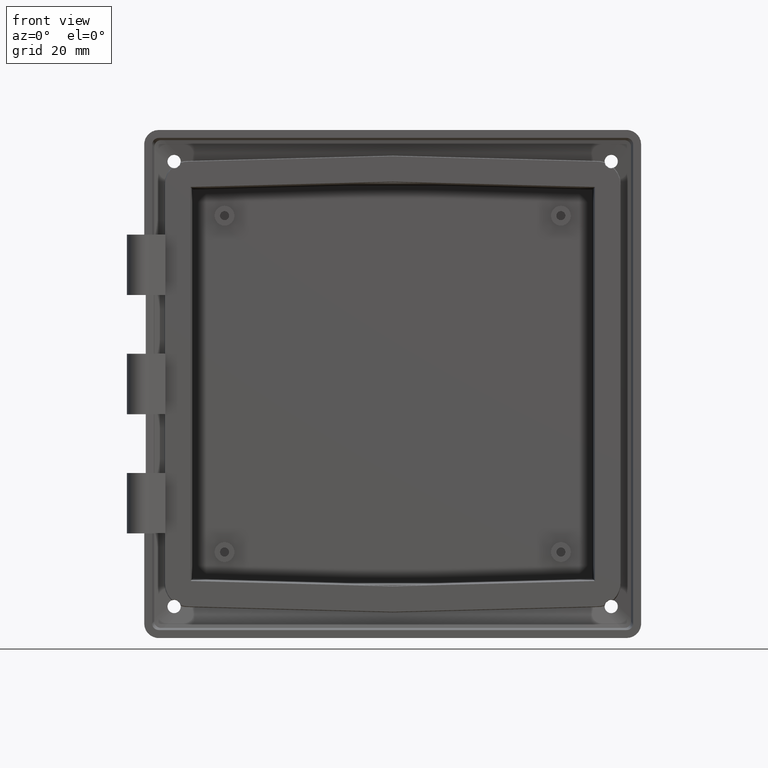
[diagram: clean part render]
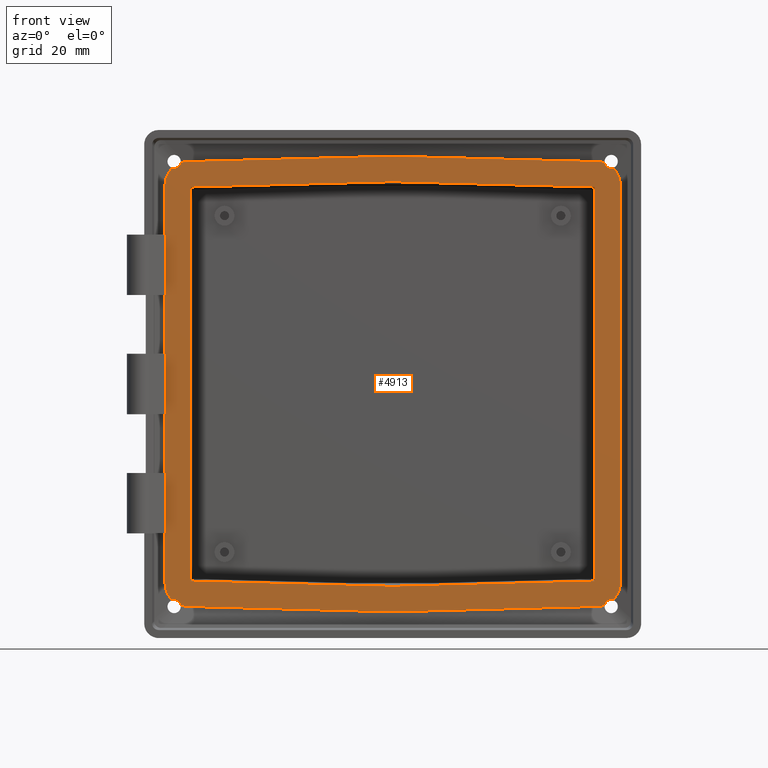
[diagram: same view with one face highlighted and labeled with its STEP entity id]
A machine part, front view. The second image highlights one B-rep face of the part: STEP entity #4913.
In plain terms, the highlighted planar face has unit normal (0, -1, 0).
Its self-contained STEP definition (entity closure, byte-faithful):
#29 = ORIENTED_EDGE ( 'NONE', *, *, #6677, .F. ) ;
#41 = VERTEX_POINT ( 'NONE', #6405 ) ;
#62 = ORIENTED_EDGE ( 'NONE', *, *, #358, .T. ) ;
#81 = EDGE_CURVE ( 'NONE', #2388, #2532, #2846, .T. ) ;
#84 = ORIENTED_EDGE ( 'NONE', *, *, #334, .F. ) ;
#92 = EDGE_CURVE ( 'NONE', #2388, #5850, #6763, .T. ) ;
#99 = CARTESIAN_POINT ( 'NONE',  ( -85.95431986137954500, 3.000000000000000000, -75.19177122956307400 ) ) ;
#124 = DIRECTION ( 'NONE',  ( 0.0000000000000000000, 0.0000000000000000000, -1.000000000000000000 ) ) ;
#134 = CARTESIAN_POINT ( 'NONE',  ( -85.95431986137954500, 2.999999999999999600, -77.60513357907753100 ) ) ;
#136 = EDGE_CURVE ( 'NONE', #5267, #7172, #5724, .T. ) ;
#159 = CARTESIAN_POINT ( 'NONE',  ( 83.28277136946401500, 3.000000000000000000, -81.50589565828342100 ) ) ;
#170 = VERTEX_POINT ( 'NONE', #6622 ) ;
#195 = CARTESIAN_POINT ( 'NONE',  ( -76.69836322453188900, 3.000000000000000000, -84.00150526381885600 ) ) ;
#223 = CARTESIAN_POINT ( 'NONE',  ( -85.95431986137954500, 3.000000000000000000, 77.60513357907756000 ) ) ;
#255 = DIRECTION ( 'NONE',  ( 0.0000000000000000000, -1.000000000000000000, 0.0000000000000000000 ) ) ;
#259 = ORIENTED_EDGE ( 'NONE', *, *, #3844, .F. ) ;
#277 = CARTESIAN_POINT ( 'NONE',  ( 76.34479524442905100, 3.000000000000000400, -74.39794507738520200 ) ) ;
#300 = ORIENTED_EDGE ( 'NONE', *, *, #6448, .T. ) ;
#325 = ORIENTED_EDGE ( 'NONE', *, *, #3719, .F. ) ;
#334 = EDGE_CURVE ( 'NONE', #2850, #6975, #6871, .T. ) ;
#338 = ORIENTED_EDGE ( 'NONE', *, *, #5276, .F. ) ;
#347 = CARTESIAN_POINT ( 'NONE',  ( 0.0000000000000000000, 3.000000000000000000, -76.39710389787147400 ) ) ;
#358 = EDGE_CURVE ( 'NONE', #983, #4411, #3478, .T. ) ;
#375 = ORIENTED_EDGE ( 'NONE', *, *, #4908, .T. ) ;
#397 = DIRECTION ( 'NONE',  ( 0.0000000000000000000, 0.0000000000000000000, 1.000000000000000000 ) ) ;
#405 = LINE ( 'NONE', #5751, #4909 ) ;
#415 = EDGE_CURVE ( 'NONE', #7193, #6068, #1574, .T. ) ;
#419 = DIRECTION ( 'NONE',  ( -1.584959911197263000E-014, 0.0000000000000000000, -1.000000000000000000 ) ) ;
#424 = EDGE_CURVE ( 'NONE', #3436, #5420, #1025, .T. ) ;
#450 = ORIENTED_EDGE ( 'NONE', *, *, #966, .T. ) ;
#467 = CARTESIAN_POINT ( 'NONE',  ( -64.48524748355609400, 3.000000000000000000, 95.85312416215902000 ) ) ;
#489 = VERTEX_POINT ( 'NONE', #1910 ) ;
#499 = CARTESIAN_POINT ( 'NONE',  ( 79.11337956163669100, 2.999999999999999600, 83.81065114022781900 ) ) ;
#506 = CARTESIAN_POINT ( 'NONE',  ( 83.28277136946401500, 3.000000000000000000, -81.50589565828342100 ) ) ;
#529 = ORIENTED_EDGE ( 'NONE', *, *, #6993, .F. ) ;
#546 = CARTESIAN_POINT ( 'NONE',  ( 82.51926223426440300, 3.000000000000000000, -81.39248517010544500 ) ) ;
#548 = DIRECTION ( 'NONE',  ( -0.9996573249755572600, -0.0000000000000000000, 0.02617694830787313900 ) ) ;
#559 = AXIS2_PLACEMENT_3D ( 'NONE', #5155, #2898, #4058 ) ;
#575 = DIRECTION ( 'NONE',  ( 0.9996573249755572600, -0.0000000000000000000, 0.02617694830787313900 ) ) ;
#589 = CARTESIAN_POINT ( 'NONE',  ( 81.67173718818632700, 3.000000000000000000, -81.98906488024424300 ) ) ;
#657 = CARTESIAN_POINT ( 'NONE',  ( -80.30777514394061700, 3.000000000000000000, -82.60177057851379300 ) ) ;
#658 = DIRECTION ( 'NONE',  ( 0.0000000000000000000, -1.000000000000000000, 0.0000000000000000000 ) ) ;
#666 = CARTESIAN_POINT ( 'NONE',  ( -0.002742357533569922600, 3.000000000000000000, 76.39717570903076200 ) ) ;
#680 = ORIENTED_EDGE ( 'NONE', *, *, #1906, .T. ) ;
#682 = DIRECTION ( 'NONE',  ( 0.0000000000000000000, -1.000000000000000000, 0.0000000000000000000 ) ) ;
#710 = AXIS2_PLACEMENT_3D ( 'NONE', #2519, #6527, #7158 ) ;
#784 = CARTESIAN_POINT ( 'NONE',  ( 76.34479524442906500, 3.000000000000000000, -74.49999999999998600 ) ) ;
#803 = ORIENTED_EDGE ( 'NONE', *, *, #3819, .F. ) ;
#842 = ORIENTED_EDGE ( 'NONE', *, *, #5746, .T. ) ;
#861 = VERTEX_POINT ( 'NONE', #4527 ) ;
#862 = CARTESIAN_POINT ( 'NONE',  ( -85.95431986137954500, 3.000000000000000000, 75.19177122956313000 ) ) ;
#864 = CIRCLE ( 'NONE', #7066, 0.4267770641589452300 ) ;
#885 = EDGE_CURVE ( 'NONE', #7364, #2780, #4979, .T. ) ;
#891 = AXIS2_PLACEMENT_3D ( 'NONE', #2038, #4261, #3208 ) ;
#906 = CARTESIAN_POINT ( 'NONE',  ( -82.51926223426440300, 3.000000000000000000, -81.39248517010545900 ) ) ;
#916 = CARTESIAN_POINT ( 'NONE',  ( -85.95431986137954500, 3.000000000000000000, -11.39999999999996700 ) ) ;
#918 = DIRECTION ( 'NONE',  ( -0.0000000000000000000, 1.000000000000000000, -0.0000000000000000000 ) ) ;
#945 = VERTEX_POINT ( 'NONE', #99 ) ;
#946 = CARTESIAN_POINT ( 'NONE',  ( 85.95431986137954500, 3.000000000000000000, 75.19177122956308800 ) ) ;
#957 = CIRCLE ( 'NONE', #1655, 2.626777064158911200 ) ;
#966 = EDGE_CURVE ( 'NONE', #4675, #4575, #5415, .T. ) ;
#983 = VERTEX_POINT ( 'NONE', #4022 ) ;
#1020 = EDGE_CURVE ( 'NONE', #3744, #4198, #4115, .T. ) ;
#1021 = DIRECTION ( 'NONE',  ( 0.0000000000000000000, -1.000000000000000000, 0.0000000000000000000 ) ) ;
#1025 = LINE ( 'NONE', #1818, #3642 ) ;
#1075 = ORIENTED_EDGE ( 'NONE', *, *, #4199, .T. ) ;
#1131 = EDGE_CURVE ( 'NONE', #4438, #7191, #2771, .T. ) ;
#1137 = EDGE_CURVE ( 'NONE', #4943, #7191, #5597, .T. ) ;
#1175 = AXIS2_PLACEMENT_3D ( 'NONE', #6480, #3021, #6624 ) ;
#1201 = DIRECTION ( 'NONE',  ( 0.0000000000000000000, 0.0000000000000000000, -1.000000000000000000 ) ) ;
#1221 = DIRECTION ( 'NONE',  ( 0.9996573249755572600, -0.0000000000000000000, -0.02617694830787332300 ) ) ;
#1233 = VECTOR ( 'NONE', #1960, 1000.000000000000000 ) ;
#1235 = CARTESIAN_POINT ( 'NONE',  ( -85.95431986137954500, 3.000000000000000000, 33.60000000000000100 ) ) ;
#1250 = DIRECTION ( 'NONE',  ( 0.0000000000000000000, 0.0000000000000000000, 1.000000000000000000 ) ) ;
#1262 = AXIS2_PLACEMENT_3D ( 'NONE', #6786, #1021, #5667 ) ;
#1266 = CARTESIAN_POINT ( 'NONE',  ( 78.25809213261251800, 3.000000000000000400, -83.96066232496262700 ) ) ;
#1271 = EDGE_CURVE ( 'NONE', #5892, #5267, #7014, .T. ) ;
#1274 = VECTOR ( 'NONE', #1821, 1000.000000000000000 ) ;
#1288 = VECTOR ( 'NONE', #2978, 1000.000000000000000 ) ;
#1313 = DIRECTION ( 'NONE',  ( -0.0000000000000000000, -0.0000000000000000000, 1.000000000000000000 ) ) ;
#1347 =( BOUNDED_CURVE ( )  B_SPLINE_CURVE ( 3, ( #2382, #2985, #6982, #2018 ),
 .UNSPECIFIED., .F., .F. ) 
 B_SPLINE_CURVE_WITH_KNOTS ( ( 4, 4 ),
 ( 3.618474534263408600, 3.913307588947642700 ),
 .UNSPECIFIED. ) 
 CURVE ( )  GEOMETRIC_REPRESENTATION_ITEM ( )  RATIONAL_B_SPLINE_CURVE ( ( 1.000000000000000000, 0.9927692314299956200, 0.9927692314299956200, 1.000000000000000000 ) ) 
 REPRESENTATION_ITEM ( '' )  );
#1414 = DIRECTION ( 'NONE',  ( -0.0000000000000000000, -0.0000000000000000000, -1.000000000000000000 ) ) ;
#1426 = CARTESIAN_POINT ( 'NONE',  ( -85.95431986137954500, 3.000000000000000000, 74.50000000000000000 ) ) ;
#1437 = ORIENTED_EDGE ( 'NONE', *, *, #5424, .T. ) ;
#1441 = VECTOR ( 'NONE', #1414, 1000.000000000000000 ) ;
#1446 = VERTEX_POINT ( 'NONE', #5793 ) ;
#1459 = DIRECTION ( 'NONE',  ( 0.9996573249755572600, 0.0000000000000000000, -0.02617694830787332300 ) ) ;
#1495 = CARTESIAN_POINT ( 'NONE',  ( -85.95431986137954500, 2.999999999999998200, -33.60000000000000100 ) ) ;
#1510 = ORIENTED_EDGE ( 'NONE', *, *, #6985, .T. ) ;
#1528 = CARTESIAN_POINT ( 'NONE',  ( 167.1202613432990100, 3.000000000000000000, 9.732121886572894500 ) ) ;
#1534 = DIRECTION ( 'NONE',  ( -0.9996573249755572600, 0.0000000000000000000, -0.02617694830787332300 ) ) ;
#1540 = VECTOR ( 'NONE', #575, 1000.000000000000100 ) ;
#1547 = VERTEX_POINT ( 'NONE', #7020 ) ;
#1574 = CIRCLE ( 'NONE', #1981, 0.4267770641589313500 ) ;
#1580 = CARTESIAN_POINT ( 'NONE',  ( 85.95431986137957400, 3.000000000000000400, 77.60513357907754500 ) ) ;
#1604 = CIRCLE ( 'NONE', #7404, 0.4267770641589036000 ) ;
#1646 = ORIENTED_EDGE ( 'NONE', *, *, #4625, .T. ) ;
#1655 = AXIS2_PLACEMENT_3D ( 'NONE', #5984, #3623, #4879 ) ;
#1657 = DIRECTION ( 'NONE',  ( -0.0000000000000000000, 1.000000000000000000, -0.0000000000000000000 ) ) ;
#1669 = ORIENTED_EDGE ( 'NONE', *, *, #7035, .T. ) ;
#1711 = CARTESIAN_POINT ( 'NONE',  ( -77.38989740137203900, 3.000000000000000000, -83.98339680410171600 ) ) ;
#1768 = ORIENTED_EDGE ( 'NONE', *, *, #885, .T. ) ;
#1806 = CIRCLE ( 'NONE', #4119, 2.626777064158925000 ) ;
#1814 = AXIS2_PLACEMENT_3D ( 'NONE', #3227, #7212, #4968 ) ;
#1818 = CARTESIAN_POINT ( 'NONE',  ( -85.95431986137954500, 3.000000000000000000, 74.50000000000000000 ) ) ;
#1821 = DIRECTION ( 'NONE',  ( 0.0000000000000000000, 0.0000000000000000000, 1.000000000000000000 ) ) ;
#1829 = LINE ( 'NONE', #2285, #1540 ) ;
#1872 = CIRCLE ( 'NONE', #4398, 0.4267770641589036000 ) ;
#1883 = CARTESIAN_POINT ( 'NONE',  ( -79.93720653206419500, 3.000000000000000000, 83.53661733837643100 ) ) ;
#1893 = ORIENTED_EDGE ( 'NONE', *, *, #5906, .T. ) ;
#1901 = CARTESIAN_POINT ( 'NONE',  ( -76.69836322453188900, 3.000000000000000000, 84.00150526381885600 ) ) ;
#1906 = EDGE_CURVE ( 'NONE', #3735, #6436, #6048, .T. ) ;
#1910 = CARTESIAN_POINT ( 'NONE',  ( -76.34479524442906500, 3.000000000000000000, -74.39794507738523100 ) ) ;
#1950 = DIRECTION ( 'NONE',  ( -0.9996573249755572600, 0.0000000000000000000, 0.02617694830787313900 ) ) ;
#1952 = LINE ( 'NONE', #3319, #3377 ) ;
#1960 = DIRECTION ( 'NONE',  ( 0.0000000000000000000, 0.0000000000000000000, 1.000000000000000000 ) ) ;
#1981 = AXIS2_PLACEMENT_3D ( 'NONE', #4591, #2358, #1201 ) ;
#1987 = EDGE_CURVE ( 'NONE', #4438, #2780, #4340, .T. ) ;
#2001 = EDGE_CURVE ( 'NONE', #5807, #2253, #7190, .T. ) ;
#2018 = CARTESIAN_POINT ( 'NONE',  ( -77.38989740137203900, 3.000000000000000000, -83.98339680410171600 ) ) ;
#2038 = CARTESIAN_POINT ( 'NONE',  ( -82.51926223426440300, 3.000000000000000000, 84.01926223426437400 ) ) ;
#2071 = AXIS2_PLACEMENT_3D ( 'NONE', #5514, #6708, #3259 ) ;
#2087 = DIRECTION ( 'NONE',  ( -0.0000000000000000000, 1.000000000000000000, -0.0000000000000000000 ) ) ;
#2100 = ORIENTED_EDGE ( 'NONE', *, *, #1137, .F. ) ;
#2103 = CARTESIAN_POINT ( 'NONE',  ( 83.19915411341777700, 3.000000000000000000, -80.15029201115565600 ) ) ;
#2116 = CARTESIAN_POINT ( 'NONE',  ( 85.95431986137954500, 3.000000000000000000, -75.19177122956311600 ) ) ;
#2121 = FACE_BOUND ( 'NONE', #4518, .T. ) ;
#2134 = CARTESIAN_POINT ( 'NONE',  ( 82.51926223426440300, 3.000000000000000000, -84.01926223426437400 ) ) ;
#2150 = CARTESIAN_POINT ( 'NONE',  ( 1.393199791643873200E-014, 3.000000000000000000, -86.00992258770145300 ) ) ;
#2151 = ORIENTED_EDGE ( 'NONE', *, *, #1987, .F. ) ;
#2170 = EDGE_CURVE ( 'NONE', #861, #4133, #3345, .T. ) ;
#2249 = CARTESIAN_POINT ( 'NONE',  ( 80.30777514394066000, 3.000000000000000000, 82.60177057851368000 ) ) ;
#2253 = VERTEX_POINT ( 'NONE', #347 ) ;
#2267 = ORIENTED_EDGE ( 'NONE', *, *, #7426, .T. ) ;
#2269 = CARTESIAN_POINT ( 'NONE',  ( 85.01431692791749100, 3.000000000000000900, -79.82680221178347300 ) ) ;
#2280 = CARTESIAN_POINT ( 'NONE',  ( -85.95431986137954500, 3.000000000000000000, 74.50000000000000000 ) ) ;
#2285 = CARTESIAN_POINT ( 'NONE',  ( -76.44681519537073200, 3.000000000000000000, 74.39527359095136200 ) ) ;
#2290 = VECTOR ( 'NONE', #6726, 1000.000000000000000 ) ;
#2300 = CARTESIAN_POINT ( 'NONE',  ( 85.95431986137956000, 3.000000000000000900, -77.60513357907756000 ) ) ;
#2358 = DIRECTION ( 'NONE',  ( 0.0000000000000000000, -1.000000000000000000, 0.0000000000000000000 ) ) ;
#2382 = CARTESIAN_POINT ( 'NONE',  ( -79.93720653206419500, 2.999999999999999600, -83.53661733837643100 ) ) ;
#2388 = VERTEX_POINT ( 'NONE', #6574 ) ;
#2401 = EDGE_CURVE ( 'NONE', #5301, #6843, #2797, .T. ) ;
#2448 = AXIS2_PLACEMENT_3D ( 'NONE', #589, #4605, #6025 ) ;
#2474 = VERTEX_POINT ( 'NONE', #5468 ) ;
#2486 = CARTESIAN_POINT ( 'NONE',  ( -81.50732616501979100, 3.000000000000000000, 81.59522775914791700 ) ) ;
#2519 = CARTESIAN_POINT ( 'NONE',  ( -82.51926223426440300, 3.000000000000000000, 84.01926223426437400 ) ) ;
#2523 = CARTESIAN_POINT ( 'NONE',  ( -82.51926223426440300, 3.000000000000000000, -84.01926223426437400 ) ) ;
#2532 = VERTEX_POINT ( 'NONE', #7230 ) ;
#2570 = ORIENTED_EDGE ( 'NONE', *, *, #7284, .F. ) ;
#2585 = AXIS2_PLACEMENT_3D ( 'NONE', #5546, #1657, #6191 ) ;
#2589 = LINE ( 'NONE', #6976, #4202 ) ;
#2598 = VERTEX_POINT ( 'NONE', #3856 ) ;
#2615 = CARTESIAN_POINT ( 'NONE',  ( 0.2488056716275791300, 3.000000000000000000, -86.00340738189825600 ) ) ;
#2635 = CARTESIAN_POINT ( 'NONE',  ( -80.66707931965905200, 3.000000000000000000, -82.83207292718482500 ) ) ;
#2664 = VERTEX_POINT ( 'NONE', #546 ) ;
#2677 = AXIS2_PLACEMENT_3D ( 'NONE', #2523, #3620, #5340 ) ;
#2720 =( BOUNDED_CURVE ( )  B_SPLINE_CURVE ( 3, ( #5566, #499, #7280, #3862 ),
 .UNSPECIFIED., .F., .F. ) 
 B_SPLINE_CURVE_WITH_KNOTS ( ( 4, 4 ),
 ( 3.618474534263409000, 3.913307588947645900 ),
 .UNSPECIFIED. ) 
 CURVE ( )  GEOMETRIC_REPRESENTATION_ITEM ( )  RATIONAL_B_SPLINE_CURVE ( ( 1.000000000000000000, 0.9927692314299954000, 0.9927692314299954000, 1.000000000000000000 ) ) 
 REPRESENTATION_ITEM ( '' )  );
#2771 =( BOUNDED_CURVE ( )  B_SPLINE_CURVE ( 3, ( #946, #1580, #3314, #4412 ),
 .UNSPECIFIED., .F., .T. ) 
 B_SPLINE_CURVE_WITH_KNOTS ( ( 4, 4 ),
 ( 2.369877718231938600, 3.170026628529723800 ),
 .UNSPECIFIED. ) 
 CURVE ( )  GEOMETRIC_REPRESENTATION_ITEM ( )  RATIONAL_B_SPLINE_CURVE ( ( 1.000000000000000000, 0.9473546648328473600, 0.9473546648328473600, 1.000000000000000000 ) ) 
 REPRESENTATION_ITEM ( '' )  );
#2773 = DIRECTION ( 'NONE',  ( 0.7660444431189692400, -0.0000000000000000000, -0.6427876096865498000 ) ) ;
#2780 = VERTEX_POINT ( 'NONE', #2116 ) ;
#2797 = LINE ( 'NONE', #2615, #3080 ) ;
#2803 = CARTESIAN_POINT ( 'NONE',  ( 82.51926223426440300, 3.000000000000000000, 81.39248517010544500 ) ) ;
#2837 = CARTESIAN_POINT ( 'NONE',  ( 80.39275231071931700, 3.000000000000000400, 82.50514272873518000 ) ) ;
#2846 = CIRCLE ( 'NONE', #710, 2.626777064158911200 ) ;
#2850 = VERTEX_POINT ( 'NONE', #7325 ) ;
#2880 = CARTESIAN_POINT ( 'NONE',  ( -76.34479524442906500, 3.000000000000000000, 74.50000000000000000 ) ) ;
#2891 = CARTESIAN_POINT ( 'NONE',  ( 85.95431986137954500, 3.000000000000000000, -74.49999999999998600 ) ) ;
#2898 = DIRECTION ( 'NONE',  ( -0.0000000000000000000, 1.000000000000000000, -0.0000000000000000000 ) ) ;
#2918 = EDGE_CURVE ( 'NONE', #5420, #5850, #6995, .T. ) ;
#2934 = VECTOR ( 'NONE', #3508, 1000.000000000000100 ) ;
#2978 = DIRECTION ( 'NONE',  ( 0.0000000000000000000, 0.0000000000000000000, -1.000000000000000000 ) ) ;
#2985 = CARTESIAN_POINT ( 'NONE',  ( -79.11337956163669100, 3.000000000000000000, -83.81065114022783300 ) ) ;
#2987 = EDGE_CURVE ( 'NONE', #2474, #3735, #1829, .T. ) ;
#2996 = EDGE_LOOP ( 'NONE', ( #300, #1075, #5594, #325, #6146, #7027, #1646, #842, #6634, #450, #4948, #1669, #1768, #2151, #3816, #2100, #4689, #803, #338, #4952, #259, #1893, #6056, #4142, #5314, #29, #5776, #84, #4465, #529, #3614, #6282, #5529, #4628, #4862, #3090, #4245, #5676, #2570, #2267, #62, #1510, #3420, #1437 ) ) ;
#3021 = DIRECTION ( 'NONE',  ( -0.0000000000000000000, 1.000000000000000000, -0.0000000000000000000 ) ) ;
#3049 =( BOUNDED_CURVE ( )  B_SPLINE_CURVE ( 3, ( #5297, #134, #4211, #4187 ),
 .UNSPECIFIED., .F., .F. ) 
 B_SPLINE_CURVE_WITH_KNOTS ( ( 4, 4 ),
 ( 2.369877718231935500, 3.170026628529726100 ),
 .UNSPECIFIED. ) 
 CURVE ( )  GEOMETRIC_REPRESENTATION_ITEM ( )  RATIONAL_B_SPLINE_CURVE ( ( 1.000000000000000000, 0.9473546648328465800, 0.9473546648328465800, 1.000000000000000000 ) ) 
 REPRESENTATION_ITEM ( '' )  );
#3080 = VECTOR ( 'NONE', #1534, 1000.000000000000100 ) ;
#3090 = ORIENTED_EDGE ( 'NONE', *, *, #136, .F. ) ;
#3116 = CARTESIAN_POINT ( 'NONE',  ( -77.38989740137202500, 3.000000000000000000, 83.98339680410171600 ) ) ;
#3120 = CIRCLE ( 'NONE', #1814, 0.4267770641589174700 ) ;
#3121 = VECTOR ( 'NONE', #7370, 1000.000000000000100 ) ;
#3129 = EDGE_CURVE ( 'NONE', #6631, #6877, #7348, .T. ) ;
#3208 = DIRECTION ( 'NONE',  ( 0.0000000000000000000, 0.0000000000000000000, -1.000000000000000000 ) ) ;
#3227 = CARTESIAN_POINT ( 'NONE',  ( -81.67173718818632700, 3.000000000000000000, 81.98906488024424300 ) ) ;
#3240 = CARTESIAN_POINT ( 'NONE',  ( -85.95431986137954500, 3.000000000000000000, 74.50000000000000000 ) ) ;
#3259 = DIRECTION ( 'NONE',  ( 0.0000000000000000000, 0.0000000000000000000, -1.000000000000000000 ) ) ;
#3297 = EDGE_CURVE ( 'NONE', #5113, #3668, #1347, .T. ) ;
#3314 = CARTESIAN_POINT ( 'NONE',  ( 85.01431692791750500, 3.000000000000000400, 79.82680221178345900 ) ) ;
#3319 = CARTESIAN_POINT ( 'NONE',  ( -76.44681519537073200, 3.000000000000000000, -74.39527359095136200 ) ) ;
#3345 = LINE ( 'NONE', #3710, #6488 ) ;
#3353 = CARTESIAN_POINT ( 'NONE',  ( 19.43585974632540600, 3.000000000000000000, -166.2712942867435700 ) ) ;
#3377 = VECTOR ( 'NONE', #548, 1000.000000000000100 ) ;
#3380 = ORIENTED_EDGE ( 'NONE', *, *, #6293, .T. ) ;
#3414 = EDGE_CURVE ( 'NONE', #3433, #5892, #405, .T. ) ;
#3420 = ORIENTED_EDGE ( 'NONE', *, *, #3129, .T. ) ;
#3422 = EDGE_CURVE ( 'NONE', #6975, #5590, #1872, .T. ) ;
#3433 = VERTEX_POINT ( 'NONE', #3498 ) ;
#3436 = VERTEX_POINT ( 'NONE', #1235 ) ;
#3464 = VERTEX_POINT ( 'NONE', #657 ) ;
#3476 = CARTESIAN_POINT ( 'NONE',  ( 77.38989740137202500, 3.000000000000000000, 83.98339680410170200 ) ) ;
#3478 = CIRCLE ( 'NONE', #559, 2.626777064158911200 ) ;
#3486 = CIRCLE ( 'NONE', #2677, 2.626777064158911200 ) ;
#3498 = CARTESIAN_POINT ( 'NONE',  ( -85.95431986137954500, 3.000000000000000000, -56.39999999999993500 ) ) ;
#3508 = DIRECTION ( 'NONE',  ( 0.9996573249755572600, 0.0000000000000000000, 0.02617694830787313900 ) ) ;
#3526 = CARTESIAN_POINT ( 'NONE',  ( -80.39275231071928800, 2.999999999999999600, 82.50514272873523700 ) ) ;
#3570 = CARTESIAN_POINT ( 'NONE',  ( -79.93720653206419500, 2.999999999999999600, -83.53661733837643100 ) ) ;
#3614 = ORIENTED_EDGE ( 'NONE', *, *, #81, .F. ) ;
#3620 = DIRECTION ( 'NONE',  ( -0.0000000000000000000, 1.000000000000000000, -0.0000000000000000000 ) ) ;
#3623 = DIRECTION ( 'NONE',  ( -0.0000000000000000000, 1.000000000000000000, -0.0000000000000000000 ) ) ;
#3642 = VECTOR ( 'NONE', #5767, 1000.000000000000000 ) ;
#3668 = VERTEX_POINT ( 'NONE', #1711 ) ;
#3670 = DIRECTION ( 'NONE',  ( -1.584959911197263000E-014, 0.0000000000000000000, -1.000000000000000000 ) ) ;
#3710 = CARTESIAN_POINT ( 'NONE',  ( 0.2488056716275791300, 3.000000000000000000, 86.00340738189825600 ) ) ;
#3719 = EDGE_CURVE ( 'NONE', #6843, #3668, #5804, .T. ) ;
#3723 = AXIS2_PLACEMENT_3D ( 'NONE', #4756, #5928, #124 ) ;
#3735 = VERTEX_POINT ( 'NONE', #6575 ) ;
#3744 = VERTEX_POINT ( 'NONE', #7059 ) ;
#3760 = CARTESIAN_POINT ( 'NONE',  ( -79.93720653206419500, 3.000000000000000000, 83.53661733837643100 ) ) ;
#3806 = VECTOR ( 'NONE', #3825, 1000.000000000000000 ) ;
#3816 = ORIENTED_EDGE ( 'NONE', *, *, #1131, .T. ) ;
#3819 = EDGE_CURVE ( 'NONE', #1547, #7179, #864, .T. ) ;
#3825 = DIRECTION ( 'NONE',  ( 0.7660444431189759000, -0.0000000000000000000, 0.6427876096865419200 ) ) ;
#3842 = CIRCLE ( 'NONE', #891, 2.626777064158911200 ) ;
#3844 = EDGE_CURVE ( 'NONE', #1446, #7193, #4638, .T. ) ;
#3856 = CARTESIAN_POINT ( 'NONE',  ( -80.39275231071928800, 3.000000000000000000, -82.50514272873523700 ) ) ;
#3862 = CARTESIAN_POINT ( 'NONE',  ( 77.38989740137202500, 3.000000000000000000, 83.98339680410170200 ) ) ;
#3891 = CARTESIAN_POINT ( 'NONE',  ( 85.95431986137954500, 3.000000000000000000, -75.19177122956311600 ) ) ;
#3905 = CIRCLE ( 'NONE', #4878, 2.626777064158925000 ) ;
#3923 = CARTESIAN_POINT ( 'NONE',  ( 81.50732616501966300, 3.000000000000000000, 81.59522775914796000 ) ) ;
#3971 = VECTOR ( 'NONE', #5957, 1000.000000000000100 ) ;
#4018 = ORIENTED_EDGE ( 'NONE', *, *, #2001, .T. ) ;
#4022 = CARTESIAN_POINT ( 'NONE',  ( -83.28277136946397300, 2.999999999999999600, -81.50589565828343600 ) ) ;
#4058 = DIRECTION ( 'NONE',  ( 0.0000000000000000000, 0.0000000000000000000, -1.000000000000000000 ) ) ;
#4115 =( BOUNDED_CURVE ( )  B_SPLINE_CURVE ( 3, ( #3116, #7107, #4917, #3760 ),
 .UNSPECIFIED., .F., .T. ) 
 B_SPLINE_CURVE_WITH_KNOTS ( ( 4, 4 ),
 ( 2.369877718231943500, 2.664710772916179400 ),
 .UNSPECIFIED. ) 
 CURVE ( )  GEOMETRIC_REPRESENTATION_ITEM ( )  RATIONAL_B_SPLINE_CURVE ( ( 1.000000000000000000, 0.9927692314299954000, 0.9927692314299954000, 1.000000000000000000 ) ) 
 REPRESENTATION_ITEM ( '' )  );
#4119 = AXIS2_PLACEMENT_3D ( 'NONE', #2134, #918, #419 ) ;
#4125 = DIRECTION ( 'NONE',  ( 0.0000000000000000000, -1.000000000000000000, 0.0000000000000000000 ) ) ;
#4133 = VERTEX_POINT ( 'NONE', #3476 ) ;
#4142 = ORIENTED_EDGE ( 'NONE', *, *, #4151, .F. ) ;
#4151 = EDGE_CURVE ( 'NONE', #3744, #861, #6164, .T. ) ;
#4187 = CARTESIAN_POINT ( 'NONE',  ( -83.28277136946397300, 2.999999999999999600, -81.50589565828343600 ) ) ;
#4197 = VECTOR ( 'NONE', #1313, 1000.000000000000000 ) ;
#4198 = VERTEX_POINT ( 'NONE', #1883 ) ;
#4199 = EDGE_CURVE ( 'NONE', #3464, #5113, #957, .T. ) ;
#4202 = VECTOR ( 'NONE', #1250, 1000.000000000000000 ) ;
#4211 = CARTESIAN_POINT ( 'NONE',  ( -85.01431692791749100, 2.999999999999999600, -79.82680221178347300 ) ) ;
#4212 = EDGE_CURVE ( 'NONE', #7172, #3436, #6438, .T. ) ;
#4229 = DIRECTION ( 'NONE',  ( -0.0000000000000000000, 1.000000000000000000, -0.0000000000000000000 ) ) ;
#4245 = ORIENTED_EDGE ( 'NONE', *, *, #1271, .F. ) ;
#4261 = DIRECTION ( 'NONE',  ( 0.0000000000000000000, -1.000000000000000000, 0.0000000000000000000 ) ) ;
#4297 = CARTESIAN_POINT ( 'NONE',  ( -83.28277136946397300, 3.000000000000000000, 81.50589565828343600 ) ) ;
#4313 = EDGE_CURVE ( 'NONE', #5115, #2850, #3120, .T. ) ;
#4319 = DIRECTION ( 'NONE',  ( 0.0000000000000000000, 0.0000000000000000000, -1.000000000000000000 ) ) ;
#4340 = LINE ( 'NONE', #2891, #1288 ) ;
#4371 = CARTESIAN_POINT ( 'NONE',  ( 76.34479524442905100, 3.000000000000000000, 74.39794507738521600 ) ) ;
#4391 = DIRECTION ( 'NONE',  ( -6.503530284676818700E-014, 0.0000000000000000000, -1.000000000000000000 ) ) ;
#4398 = AXIS2_PLACEMENT_3D ( 'NONE', #5777, #4125, #6404 ) ;
#4411 = VERTEX_POINT ( 'NONE', #906 ) ;
#4412 = CARTESIAN_POINT ( 'NONE',  ( 83.28277136946400100, 2.999999999999999600, 81.50589565828342100 ) ) ;
#4438 = VERTEX_POINT ( 'NONE', #7383 ) ;
#4465 = ORIENTED_EDGE ( 'NONE', *, *, #4313, .F. ) ;
#4474 = VERTEX_POINT ( 'NONE', #5754 ) ;
#4518 = EDGE_LOOP ( 'NONE', ( #3380, #4018, #375, #4573, #6950, #680 ) ) ;
#4527 = CARTESIAN_POINT ( 'NONE',  ( 1.387778780781445700E-014, 3.000000000000000000, 86.00992258770145300 ) ) ;
#4560 = EDGE_CURVE ( 'NONE', #489, #2474, #5716, .T. ) ;
#4573 = ORIENTED_EDGE ( 'NONE', *, *, #4560, .T. ) ;
#4575 = VERTEX_POINT ( 'NONE', #7407 ) ;
#4591 = CARTESIAN_POINT ( 'NONE',  ( 80.66707931965905200, 3.000000000000000000, 82.83207292718482500 ) ) ;
#4605 = DIRECTION ( 'NONE',  ( -0.0000000000000000000, 1.000000000000000000, -0.0000000000000000000 ) ) ;
#4625 = EDGE_CURVE ( 'NONE', #170, #4474, #5618, .T. ) ;
#4628 = ORIENTED_EDGE ( 'NONE', *, *, #424, .F. ) ;
#4638 = CIRCLE ( 'NONE', #7339, 2.626777064158925000 ) ;
#4675 = VERTEX_POINT ( 'NONE', #4777 ) ;
#4677 = DIRECTION ( 'NONE',  ( 0.0000000000000000000, 0.0000000000000000000, 1.000000000000000000 ) ) ;
#4689 = ORIENTED_EDGE ( 'NONE', *, *, #4738, .F. ) ;
#4691 = CARTESIAN_POINT ( 'NONE',  ( -81.50732616501979100, 3.000000000000000000, -81.59522775914793200 ) ) ;
#4723 = CARTESIAN_POINT ( 'NONE',  ( 82.51926223426440300, 3.000000000000000000, 84.01926223426437400 ) ) ;
#4727 = CARTESIAN_POINT ( 'NONE',  ( 82.51926223426440300, 3.000000000000000000, -84.01926223426437400 ) ) ;
#4738 = EDGE_CURVE ( 'NONE', #7179, #4943, #3905, .T. ) ;
#4750 = CARTESIAN_POINT ( 'NONE',  ( 81.67173718818632700, 3.000000000000000000, 81.98906488024424300 ) ) ;
#4756 = CARTESIAN_POINT ( 'NONE',  ( -82.51926223426440300, 3.000000000000000000, 84.01926223426437400 ) ) ;
#4777 = CARTESIAN_POINT ( 'NONE',  ( 81.39741017924646400, 3.000000000000000400, -81.66213468179469700 ) ) ;
#4827 = CARTESIAN_POINT ( 'NONE',  ( -85.95431986137954500, 3.000000000000000000, 75.19177122956313000 ) ) ;
#4862 = ORIENTED_EDGE ( 'NONE', *, *, #4212, .F. ) ;
#4878 = AXIS2_PLACEMENT_3D ( 'NONE', #5979, #255, #4319 ) ;
#4879 = DIRECTION ( 'NONE',  ( 1.056639940798180900E-014, 0.0000000000000000000, -1.000000000000000000 ) ) ;
#4890 = CIRCLE ( 'NONE', #1175, 0.4267770641589313500 ) ;
#4908 = EDGE_CURVE ( 'NONE', #2253, #489, #1952, .T. ) ;
#4909 = VECTOR ( 'NONE', #4677, 1000.000000000000000 ) ;
#4913 = ADVANCED_FACE ( 'NONE', ( #2121, #5256 ), #7322, .T. ) ;
#4917 = CARTESIAN_POINT ( 'NONE',  ( -79.11337956163669100, 2.999999999999999600, 83.81065114022784700 ) ) ;
#4943 = VERTEX_POINT ( 'NONE', #2803 ) ;
#4948 = ORIENTED_EDGE ( 'NONE', *, *, #6361, .T. ) ;
#4952 = ORIENTED_EDGE ( 'NONE', *, *, #415, .F. ) ;
#4967 =( BOUNDED_CURVE ( )  B_SPLINE_CURVE ( 3, ( #6973, #1266, #6440, #5785 ),
 .UNSPECIFIED., .F., .F. ) 
 B_SPLINE_CURVE_WITH_KNOTS ( ( 4, 4 ),
 ( 2.369877718231938600, 2.664710772916175900 ),
 .UNSPECIFIED. ) 
 CURVE ( )  GEOMETRIC_REPRESENTATION_ITEM ( )  RATIONAL_B_SPLINE_CURVE ( ( 1.000000000000000000, 0.9927692314299954000, 0.9927692314299954000, 1.000000000000000000 ) ) 
 REPRESENTATION_ITEM ( '' )  );
#4968 = DIRECTION ( 'NONE',  ( 0.0000000000000000000, 0.0000000000000000000, -1.000000000000000000 ) ) ;
#4970 = AXIS2_PLACEMENT_3D ( 'NONE', #5879, #4229, #3670 ) ;
#4979 =( BOUNDED_CURVE ( )  B_SPLINE_CURVE ( 3, ( #506, #2269, #2300, #3891 ),
 .UNSPECIFIED., .F., .F. ) 
 B_SPLINE_CURVE_WITH_KNOTS ( ( 4, 4 ),
 ( 3.113158678649862400, 3.913307588947642700 ),
 .UNSPECIFIED. ) 
 CURVE ( )  GEOMETRIC_REPRESENTATION_ITEM ( )  RATIONAL_B_SPLINE_CURVE ( ( 1.000000000000000000, 0.9473546648328479100, 0.9473546648328479100, 1.000000000000000000 ) ) 
 REPRESENTATION_ITEM ( '' )  );
#4997 = VECTOR ( 'NONE', #397, 1000.000000000000000 ) ;
#5113 = VERTEX_POINT ( 'NONE', #3570 ) ;
#5115 = VERTEX_POINT ( 'NONE', #2486 ) ;
#5155 = CARTESIAN_POINT ( 'NONE',  ( -82.51926223426440300, 3.000000000000000000, -84.01926223426437400 ) ) ;
#5195 = LINE ( 'NONE', #784, #1441 ) ;
#5239 = DIRECTION ( 'NONE',  ( 0.0000000000000000000, 0.0000000000000000000, -1.000000000000000000 ) ) ;
#5256 = FACE_OUTER_BOUND ( 'NONE', #2996, .T. ) ;
#5264 = DIRECTION ( 'NONE',  ( -0.0000000000000000000, 1.000000000000000000, -0.0000000000000000000 ) ) ;
#5267 = VERTEX_POINT ( 'NONE', #916 ) ;
#5274 = CARTESIAN_POINT ( 'NONE',  ( 83.28277136946400100, 2.999999999999999600, 81.50589565828342100 ) ) ;
#5276 = EDGE_CURVE ( 'NONE', #6068, #1547, #7292, .T. ) ;
#5286 = DIRECTION ( 'NONE',  ( 0.0000000000000000000, 0.0000000000000000000, -1.000000000000000000 ) ) ;
#5297 = CARTESIAN_POINT ( 'NONE',  ( -85.95431986137954500, 3.000000000000000000, -75.19177122956307400 ) ) ;
#5301 = VERTEX_POINT ( 'NONE', #6682 ) ;
#5314 = ORIENTED_EDGE ( 'NONE', *, *, #1020, .T. ) ;
#5330 = EDGE_CURVE ( 'NONE', #41, #4675, #7122, .T. ) ;
#5340 = DIRECTION ( 'NONE',  ( 0.0000000000000000000, 0.0000000000000000000, -1.000000000000000000 ) ) ;
#5415 = CIRCLE ( 'NONE', #2448, 0.4267770641589452300 ) ;
#5420 = VERTEX_POINT ( 'NONE', #6823 ) ;
#5424 = EDGE_CURVE ( 'NONE', #6877, #2598, #5608, .T. ) ;
#5468 = CARTESIAN_POINT ( 'NONE',  ( -76.34479524442906500, 3.000000000000000000, 74.39794507738521600 ) ) ;
#5510 = VECTOR ( 'NONE', #6289, 1000.000000000000000 ) ;
#5512 = EDGE_CURVE ( 'NONE', #5301, #170, #4967, .T. ) ;
#5514 = CARTESIAN_POINT ( 'NONE',  ( 82.51926223426440300, 3.000000000000000000, 84.01926223426437400 ) ) ;
#5529 = ORIENTED_EDGE ( 'NONE', *, *, #2918, .F. ) ;
#5546 = CARTESIAN_POINT ( 'NONE',  ( -81.67173718818632700, 3.000000000000000000, -81.98906488024424300 ) ) ;
#5566 = CARTESIAN_POINT ( 'NONE',  ( 79.93720653206419500, 3.000000000000000000, 83.53661733837641600 ) ) ;
#5590 = VERTEX_POINT ( 'NONE', #5932 ) ;
#5594 = ORIENTED_EDGE ( 'NONE', *, *, #3297, .T. ) ;
#5597 = CIRCLE ( 'NONE', #2071, 2.626777064158925000 ) ;
#5608 = LINE ( 'NONE', #3353, #5798 ) ;
#5618 = CIRCLE ( 'NONE', #6270, 2.626777064158925000 ) ;
#5667 = DIRECTION ( 'NONE',  ( 0.0000000000000000000, -0.0000000000000000000, -1.000000000000000000 ) ) ;
#5676 = ORIENTED_EDGE ( 'NONE', *, *, #3414, .F. ) ;
#5716 = LINE ( 'NONE', #2880, #4197 ) ;
#5724 = LINE ( 'NONE', #3240, #4997 ) ;
#5746 = EDGE_CURVE ( 'NONE', #4474, #41, #4890, .T. ) ;
#5751 = CARTESIAN_POINT ( 'NONE',  ( -85.95431986137954500, 3.000000000000000000, 74.50000000000000000 ) ) ;
#5754 = CARTESIAN_POINT ( 'NONE',  ( 80.30777514394064600, 3.000000000000000000, -82.60177057851372200 ) ) ;
#5767 = DIRECTION ( 'NONE',  ( 0.0000000000000000000, 0.0000000000000000000, 1.000000000000000000 ) ) ;
#5776 = ORIENTED_EDGE ( 'NONE', *, *, #3422, .F. ) ;
#5777 = CARTESIAN_POINT ( 'NONE',  ( -80.66707931965905200, 3.000000000000000000, 82.83207292718482500 ) ) ;
#5785 = CARTESIAN_POINT ( 'NONE',  ( 79.93720653206419500, 3.000000000000000900, -83.53661733837641600 ) ) ;
#5793 = CARTESIAN_POINT ( 'NONE',  ( 79.93720653206419500, 3.000000000000000000, 83.53661733837641600 ) ) ;
#5798 = VECTOR ( 'NONE', #2773, 1000.000000000000100 ) ;
#5804 = LINE ( 'NONE', #195, #5887 ) ;
#5807 = VERTEX_POINT ( 'NONE', #277 ) ;
#5850 = VERTEX_POINT ( 'NONE', #862 ) ;
#5879 = CARTESIAN_POINT ( 'NONE',  ( 82.51926223426440300, 3.000000000000000000, -84.01926223426437400 ) ) ;
#5887 = VECTOR ( 'NONE', #1950, 1000.000000000000100 ) ;
#5892 = VERTEX_POINT ( 'NONE', #1495 ) ;
#5906 = EDGE_CURVE ( 'NONE', #1446, #4133, #2720, .T. ) ;
#5928 = DIRECTION ( 'NONE',  ( 0.0000000000000000000, -1.000000000000000000, 0.0000000000000000000 ) ) ;
#5932 = CARTESIAN_POINT ( 'NONE',  ( -80.30777514394061700, 3.000000000000000000, 82.60177057851379300 ) ) ;
#5957 = DIRECTION ( 'NONE',  ( -0.9996573249755572600, -0.0000000000000000000, -0.02617694830787332300 ) ) ;
#5979 = CARTESIAN_POINT ( 'NONE',  ( 82.51926223426440300, 3.000000000000000000, 84.01926223426437400 ) ) ;
#5984 = CARTESIAN_POINT ( 'NONE',  ( -82.51926223426440300, 3.000000000000000000, -84.01926223426437400 ) ) ;
#6025 = DIRECTION ( 'NONE',  ( 3.251765142338092500E-014, 0.0000000000000000000, -1.000000000000000000 ) ) ;
#6048 = LINE ( 'NONE', #666, #6583 ) ;
#6056 = ORIENTED_EDGE ( 'NONE', *, *, #2170, .F. ) ;
#6068 = VERTEX_POINT ( 'NONE', #2837 ) ;
#6146 = ORIENTED_EDGE ( 'NONE', *, *, #2401, .F. ) ;
#6164 = LINE ( 'NONE', #1901, #2934 ) ;
#6191 = DIRECTION ( 'NONE',  ( 2.276235599636812600E-013, 0.0000000000000000000, -1.000000000000000000 ) ) ;
#6207 = CARTESIAN_POINT ( 'NONE',  ( -85.95431986137954500, 2.999999999999998200, 11.40000000000000000 ) ) ;
#6270 = AXIS2_PLACEMENT_3D ( 'NONE', #4727, #5264, #5239 ) ;
#6282 = ORIENTED_EDGE ( 'NONE', *, *, #92, .T. ) ;
#6289 = DIRECTION ( 'NONE',  ( 0.0000000000000000000, 0.0000000000000000000, 1.000000000000000000 ) ) ;
#6293 = EDGE_CURVE ( 'NONE', #6436, #5807, #5195, .T. ) ;
#6341 = CARTESIAN_POINT ( 'NONE',  ( -0.002742357533569922600, 3.000000000000000000, -76.39717570903076200 ) ) ;
#6361 = EDGE_CURVE ( 'NONE', #4575, #2664, #1806, .T. ) ;
#6404 = DIRECTION ( 'NONE',  ( 0.0000000000000000000, 0.0000000000000000000, -1.000000000000000000 ) ) ;
#6405 = CARTESIAN_POINT ( 'NONE',  ( 80.39275231071935900, 3.000000000000000000, -82.50514272873518000 ) ) ;
#6431 = DIRECTION ( 'NONE',  ( 0.0000000000000000000, 0.0000000000000000000, -1.000000000000000000 ) ) ;
#6436 = VERTEX_POINT ( 'NONE', #4371 ) ;
#6438 = LINE ( 'NONE', #1426, #1233 ) ;
#6440 = CARTESIAN_POINT ( 'NONE',  ( 79.11337956163669100, 3.000000000000000400, -83.81065114022781900 ) ) ;
#6448 = EDGE_CURVE ( 'NONE', #2598, #3464, #1604, .T. ) ;
#6450 = CIRCLE ( 'NONE', #4970, 2.626777064158925000 ) ;
#6480 = CARTESIAN_POINT ( 'NONE',  ( 80.66707931965905200, 3.000000000000000000, -82.83207292718482500 ) ) ;
#6488 = VECTOR ( 'NONE', #1459, 1000.000000000000100 ) ;
#6527 = DIRECTION ( 'NONE',  ( 0.0000000000000000000, -1.000000000000000000, 0.0000000000000000000 ) ) ;
#6574 = CARTESIAN_POINT ( 'NONE',  ( -83.28277136946397300, 3.000000000000000000, 81.50589565828343600 ) ) ;
#6575 = CARTESIAN_POINT ( 'NONE',  ( 1.387778780781445700E-014, 3.000000000000000000, 76.39710389787147400 ) ) ;
#6583 = VECTOR ( 'NONE', #1221, 1000.000000000000100 ) ;
#6596 = CARTESIAN_POINT ( 'NONE',  ( -85.01431692791746300, 3.000000000000000000, 79.82680221178348700 ) ) ;
#6622 = CARTESIAN_POINT ( 'NONE',  ( 79.93720653206419500, 3.000000000000000900, -83.53661733837641600 ) ) ;
#6624 = DIRECTION ( 'NONE',  ( 6.503530284676395800E-014, 0.0000000000000000000, -1.000000000000000000 ) ) ;
#6631 = VERTEX_POINT ( 'NONE', #4691 ) ;
#6634 = ORIENTED_EDGE ( 'NONE', *, *, #5330, .T. ) ;
#6677 = EDGE_CURVE ( 'NONE', #5590, #4198, #3842, .T. ) ;
#6682 = CARTESIAN_POINT ( 'NONE',  ( 77.38989740137202500, 3.000000000000000000, -83.98339680410170200 ) ) ;
#6708 = DIRECTION ( 'NONE',  ( 0.0000000000000000000, -1.000000000000000000, 0.0000000000000000000 ) ) ;
#6726 = DIRECTION ( 'NONE',  ( 0.7660444431189759000, 0.0000000000000000000, -0.6427876096865419200 ) ) ;
#6763 =( BOUNDED_CURVE ( )  B_SPLINE_CURVE ( 3, ( #4297, #6596, #223, #4827 ),
 .UNSPECIFIED., .F., .T. ) 
 B_SPLINE_CURVE_WITH_KNOTS ( ( 4, 4 ),
 ( 3.113158678649862400, 3.913307588947644500 ),
 .UNSPECIFIED. ) 
 CURVE ( )  GEOMETRIC_REPRESENTATION_ITEM ( )  RATIONAL_B_SPLINE_CURVE ( ( 1.000000000000000000, 0.9473546648328478000, 0.9473546648328478000, 1.000000000000000000 ) ) 
 REPRESENTATION_ITEM ( '' )  );
#6786 = CARTESIAN_POINT ( 'NONE',  ( 87.44955755290430900, 3.000000000000000000, -85.21572558013848200 ) ) ;
#6823 = CARTESIAN_POINT ( 'NONE',  ( -85.95431986137954500, 2.999999999999998200, 56.39999999999999900 ) ) ;
#6843 = VERTEX_POINT ( 'NONE', #2150 ) ;
#6871 = LINE ( 'NONE', #467, #3121 ) ;
#6876 = CIRCLE ( 'NONE', #3723, 2.626777064158911200 ) ;
#6877 = VERTEX_POINT ( 'NONE', #7265 ) ;
#6908 = CARTESIAN_POINT ( 'NONE',  ( -85.95431986137954500, 3.000000000000000000, 74.50000000000000000 ) ) ;
#6950 = ORIENTED_EDGE ( 'NONE', *, *, #2987, .T. ) ;
#6973 = CARTESIAN_POINT ( 'NONE',  ( 77.38989740137202500, 3.000000000000000000, -83.98339680410170200 ) ) ;
#6975 = VERTEX_POINT ( 'NONE', #3526 ) ;
#6976 = CARTESIAN_POINT ( 'NONE',  ( -85.95431986137954500, 3.000000000000000000, 74.50000000000000000 ) ) ;
#6982 = CARTESIAN_POINT ( 'NONE',  ( -78.25809213261253200, 3.000000000000000000, -83.96066232496265500 ) ) ;
#6985 = EDGE_CURVE ( 'NONE', #4411, #6631, #3486, .T. ) ;
#6993 = EDGE_CURVE ( 'NONE', #2532, #5115, #6876, .T. ) ;
#6995 = LINE ( 'NONE', #6908, #1274 ) ;
#7014 = LINE ( 'NONE', #2280, #5510 ) ;
#7020 = CARTESIAN_POINT ( 'NONE',  ( 81.39741017924645000, 3.000000000000000900, 81.66213468179474000 ) ) ;
#7027 = ORIENTED_EDGE ( 'NONE', *, *, #5512, .T. ) ;
#7035 = EDGE_CURVE ( 'NONE', #2664, #7364, #6450, .T. ) ;
#7059 = CARTESIAN_POINT ( 'NONE',  ( -77.38989740137202500, 3.000000000000000000, 83.98339680410171600 ) ) ;
#7066 = AXIS2_PLACEMENT_3D ( 'NONE', #4750, #682, #6431 ) ;
#7107 = CARTESIAN_POINT ( 'NONE',  ( -78.25809213261253200, 2.999999999999999600, 83.96066232496265500 ) ) ;
#7122 = LINE ( 'NONE', #2103, #3806 ) ;
#7158 = DIRECTION ( 'NONE',  ( 0.0000000000000000000, 0.0000000000000000000, -1.000000000000000000 ) ) ;
#7172 = VERTEX_POINT ( 'NONE', #6207 ) ;
#7179 = VERTEX_POINT ( 'NONE', #3923 ) ;
#7190 = LINE ( 'NONE', #6341, #3971 ) ;
#7191 = VERTEX_POINT ( 'NONE', #5274 ) ;
#7193 = VERTEX_POINT ( 'NONE', #2249 ) ;
#7212 = DIRECTION ( 'NONE',  ( 0.0000000000000000000, -1.000000000000000000, 0.0000000000000000000 ) ) ;
#7230 = CARTESIAN_POINT ( 'NONE',  ( -82.51926223426440300, 3.000000000000000000, 81.39248517010545900 ) ) ;
#7265 = CARTESIAN_POINT ( 'NONE',  ( -81.39741017924656300, 3.000000000000000000, -81.66213468179466900 ) ) ;
#7280 = CARTESIAN_POINT ( 'NONE',  ( 78.25809213261251800, 2.999999999999999600, 83.96066232496262700 ) ) ;
#7284 = EDGE_CURVE ( 'NONE', #945, #3433, #2589, .T. ) ;
#7292 = LINE ( 'NONE', #1528, #2290 ) ;
#7322 = PLANE ( 'NONE',  #1262 ) ;
#7325 = CARTESIAN_POINT ( 'NONE',  ( -81.39741017924653500, 3.000000000000000000, 81.66213468179464000 ) ) ;
#7339 = AXIS2_PLACEMENT_3D ( 'NONE', #4723, #658, #5286 ) ;
#7348 = CIRCLE ( 'NONE', #2585, 0.4267770641589174700 ) ;
#7364 = VERTEX_POINT ( 'NONE', #159 ) ;
#7370 = DIRECTION ( 'NONE',  ( 0.7660444431189692400, 0.0000000000000000000, 0.6427876096865498000 ) ) ;
#7383 = CARTESIAN_POINT ( 'NONE',  ( 85.95431986137954500, 3.000000000000000000, 75.19177122956308800 ) ) ;
#7404 = AXIS2_PLACEMENT_3D ( 'NONE', #2635, #2087, #4391 ) ;
#7407 = CARTESIAN_POINT ( 'NONE',  ( 81.50732616501964900, 3.000000000000000000, -81.59522775914796000 ) ) ;
#7426 = EDGE_CURVE ( 'NONE', #945, #983, #3049, .T. ) ;